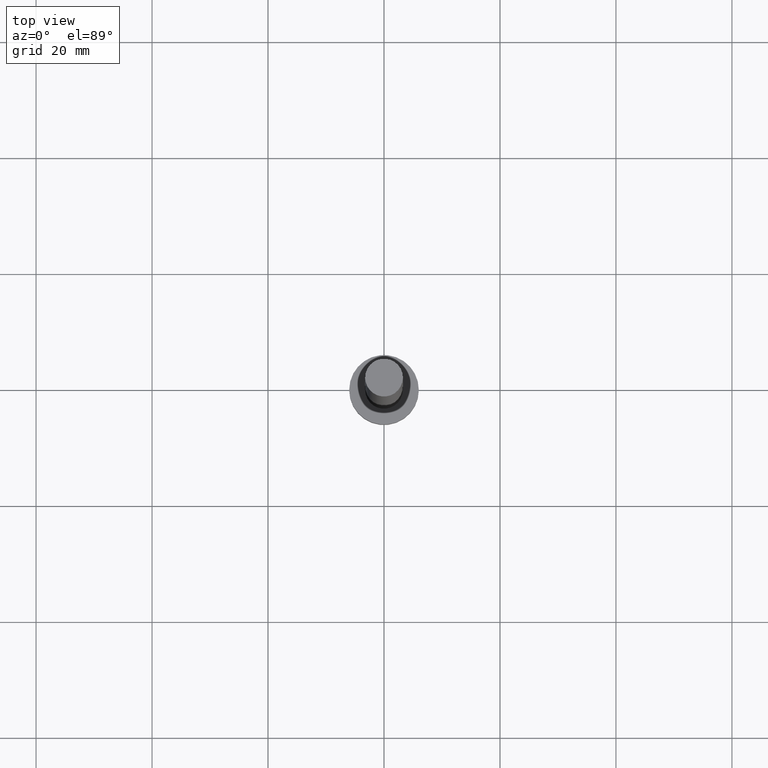
[diagram: clean part render]
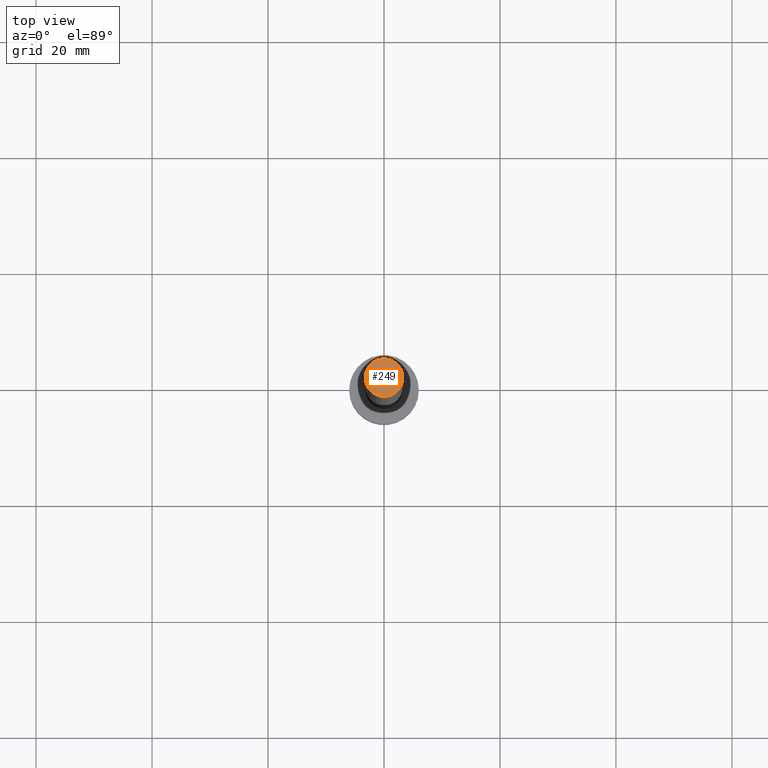
[diagram: same view with one face highlighted and labeled with its STEP entity id]
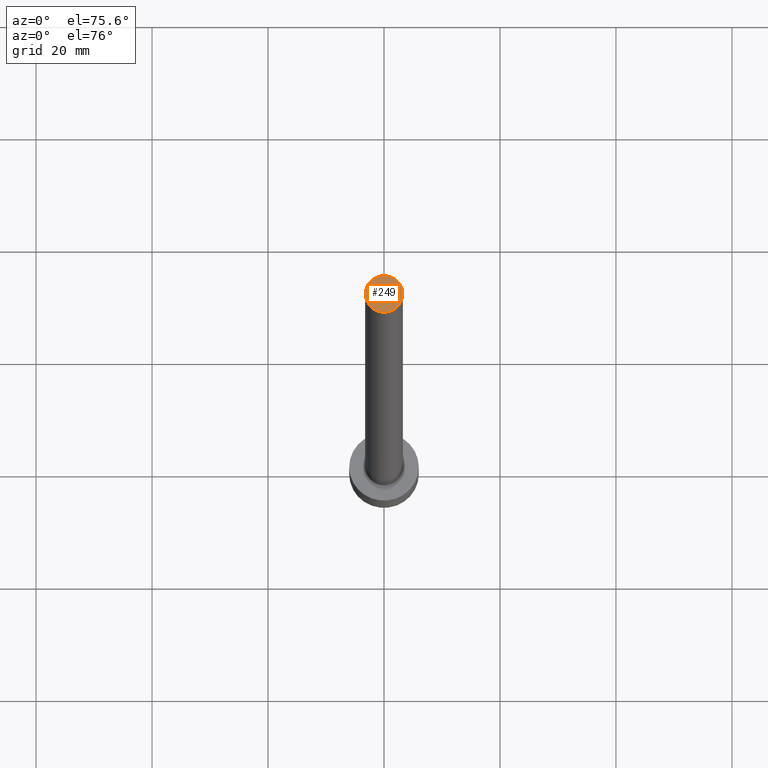
[diagram: same view with one face highlighted and labeled with its STEP entity id]
A machine part, top view. The second image highlights one B-rep face of the part: STEP entity #249.
A second angle (auxiliary view) of the same face is appended — the face is thin or edge-on in the first view.
In plain terms, the highlighted planar face has unit normal (0, 0, 1).
Its self-contained STEP definition (entity closure, byte-faithful):
#7 = DIRECTION ( 'NONE',  ( 0.000000000000000000, 0.000000000000000000, 1.000000000000000000 ) ) ;
#10 = AXIS2_PLACEMENT_3D ( 'NONE', #198, #138, #13 ) ;
#13 = DIRECTION ( 'NONE',  ( 1.000000000000000000, 0.000000000000000000, 0.000000000000000000 ) ) ;
#22 = ORIENTED_EDGE ( 'NONE', *, *, #234, .T. ) ;
#29 = CIRCLE ( 'NONE', #10, 3.250000000000000444 ) ;
#53 = DIRECTION ( 'NONE',  ( 0.000000000000000000, 0.000000000000000000, 1.000000000000000000 ) ) ;
#64 = DIRECTION ( 'NONE',  ( 1.000000000000000000, 0.000000000000000000, 0.000000000000000000 ) ) ;
#72 = EDGE_CURVE ( 'NONE', #242, #99, #97, .T. ) ;
#87 = CARTESIAN_POINT ( 'NONE',  ( 3.250000000000000444, 3.980102097228898231E-16, 125.0000000000000000 ) ) ;
#97 = CIRCLE ( 'NONE', #111, 3.250000000000000444 ) ;
#98 = DIRECTION ( 'NONE',  ( 1.000000000000000000, 0.000000000000000000, -0.000000000000000000 ) ) ;
#99 = VERTEX_POINT ( 'NONE', #87 ) ;
#108 = CARTESIAN_POINT ( 'NONE',  ( 0.000000000000000000, 0.000000000000000000, 125.0000000000000000 ) ) ;
#111 = AXIS2_PLACEMENT_3D ( 'NONE', #108, #7, #64 ) ;
#122 = EDGE_LOOP ( 'NONE', ( #208, #22 ) ) ;
#125 = AXIS2_PLACEMENT_3D ( 'NONE', #213, #53, #98 ) ;
#136 = CARTESIAN_POINT ( 'NONE',  ( -3.250000000000000444, 0.000000000000000000, 125.0000000000000000 ) ) ;
#138 = DIRECTION ( 'NONE',  ( 0.000000000000000000, 0.000000000000000000, 1.000000000000000000 ) ) ;
#198 = CARTESIAN_POINT ( 'NONE',  ( 0.000000000000000000, 0.000000000000000000, 125.0000000000000000 ) ) ;
#208 = ORIENTED_EDGE ( 'NONE', *, *, #72, .T. ) ;
#211 = FACE_OUTER_BOUND ( 'NONE', #122, .T. ) ;
#213 = CARTESIAN_POINT ( 'NONE',  ( 0.000000000000000000, 0.000000000000000000, 125.0000000000000000 ) ) ;
#226 = PLANE ( 'NONE',  #125 ) ;
#234 = EDGE_CURVE ( 'NONE', #99, #242, #29, .T. ) ;
#242 = VERTEX_POINT ( 'NONE', #136 ) ;
#249 = ADVANCED_FACE ( 'NONE', ( #211 ), #226, .T. ) ;